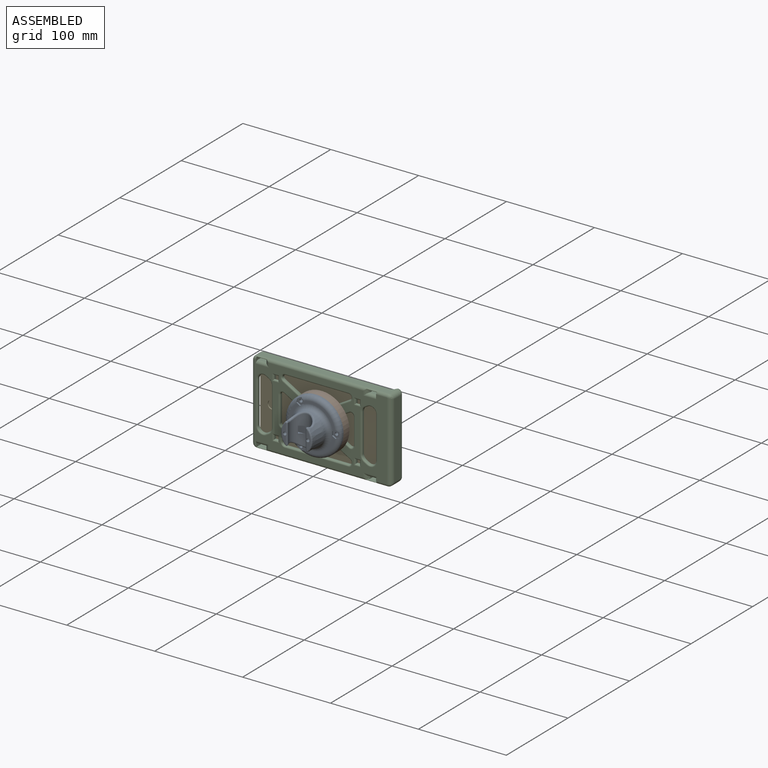
[diagram: assembled view]
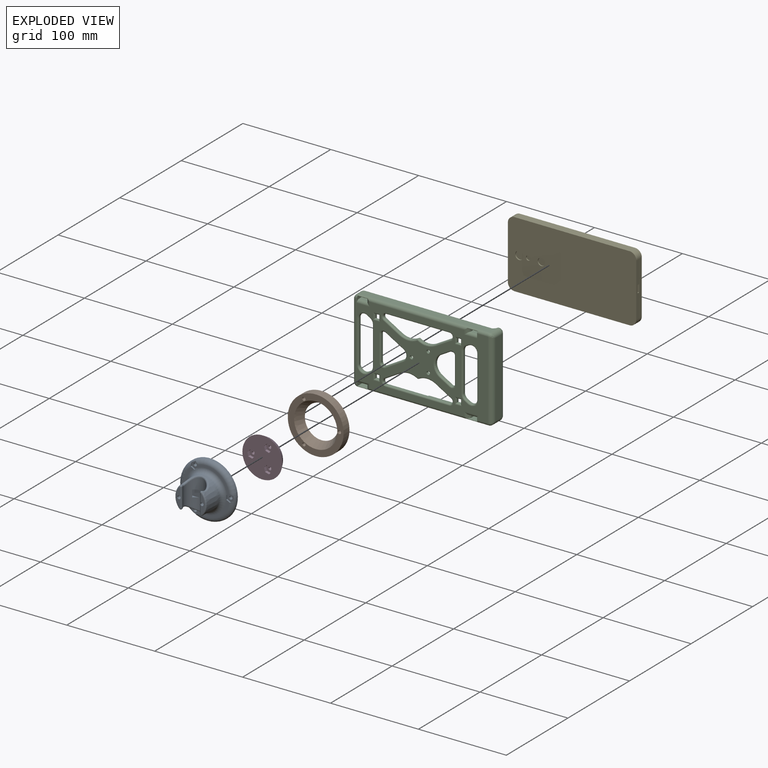
[diagram: exploded view]
GUIDED TOUR — MATED ASSEMBLY (Onshape document f2cc171b6fee4f7c1498dc96, AutoMate assembly f2cc171b6fee4f7c1498dc96_dc602207f410a8f758f2ab92_96a371d67c970a9a8f5a49b7_default)

This assembly has 5 components, labeled P0..P4 below (a component is one placed occurrence of a part; the same part can appear more than once), held together by 8 mates. A mate is a constraint between two components; its type names the relative motion it leaves free:
  CYLINDRICAL — leaves both rotation about and translation along the listed axis free,
  PLANAR — leaves sliding in the plane through the listed point (normal = the listed direction) and rotation about that normal free,
  REVOLUTE — leaves rotation about the listed axis free (a hinge).
Axis/direction vectors are unit vectors and 'through' points are millimeter coordinates, both in the assembly's world frame.

MATES
  1. PLANAR "Planar 1": P2 <-> P4, direction (0.000, 1.000, 0.000) through (-72.36, 19.48, 110.07) mm
  2. PLANAR "Planar 2": P2 <-> P4, direction (-1.000, 0.000, 0.000) through (72.48, 29.36, 110.07) mm
  3. REVOLUTE "Revolute 2": P0 <-> P1, axis (0.000, 1.000, 0.000) through (26.44, 5.19, 110.09) mm
  4. PLANAR "Planar 3": P3 <-> P2, direction (0.000, 1.000, 0.000) through (-0.55, 14.71, 110.07) mm
  5. REVOLUTE "Revolute 1": P1 <-> P3, axis (0.000, 1.000, 0.000) through (-0.55, 14.71, 110.07) mm
  6. CYLINDRICAL "Cylindrical 2": P2 <-> P3, axis (0.000, -1.000, 0.000) through (5.80, 14.71, 99.07) mm
  7. CYLINDRICAL "Cylindrical 1": P2 <-> P3, axis (0.000, -1.000, 0.000) through (5.80, 14.71, 121.07) mm
  8. REVOLUTE "Revolute 3": P1 <-> P0, axis (0.000, -1.000, 0.000) through (-14.02, 5.19, 86.69) mm

ASSEMBLY ORDER
  1. P1 — the base component [order verified]
  2. P3 [order verified]
  3. P2 [order verified]
  4. P4 [order verified]
  5. P0 [order verified]
(P3 verified with a relaxed clearance tolerance: the source model stores slight part interference there.)
Order-tag legend:
  [order verified] — this step's position reverses a verified removal order: the component was checked to insert without passing through the ones already placed.

Of the 5 components, 3 carry the full construction recipe — the FeatureScript program that regenerates the part's solid from scratch; the rest are supplied as boundary geometry only.
Each toured component is shown spotlighted twice — in the assembled view, then in the exploded view, where a leader line traces a displaced component back to its assembled socket (saturated green if recipe-attached, orange if geometry-only; every other component desaturated gray) — followed by its recipe or geometry summary and the mates that hold it.
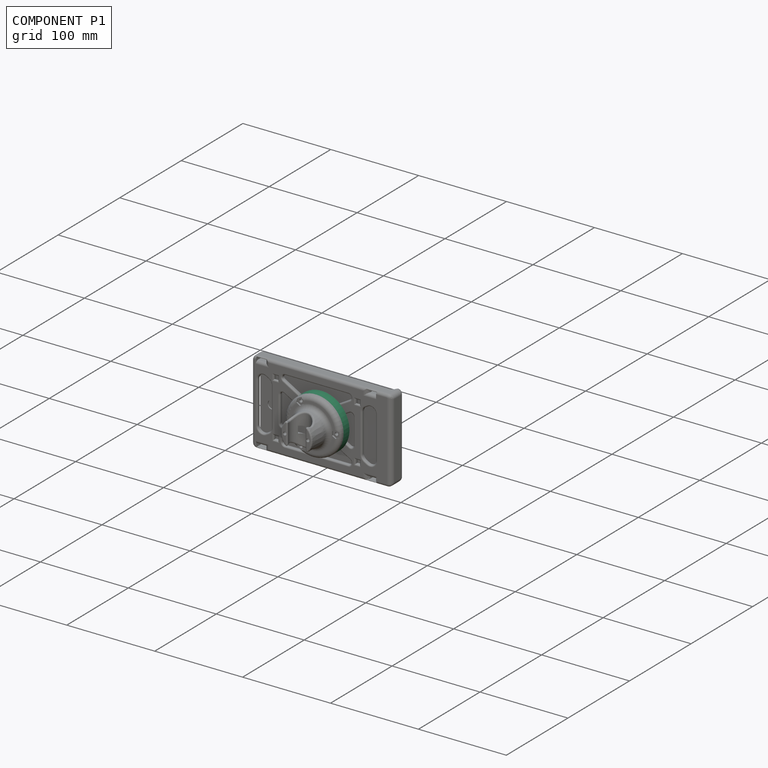
[diagram: component P1 — assembled]
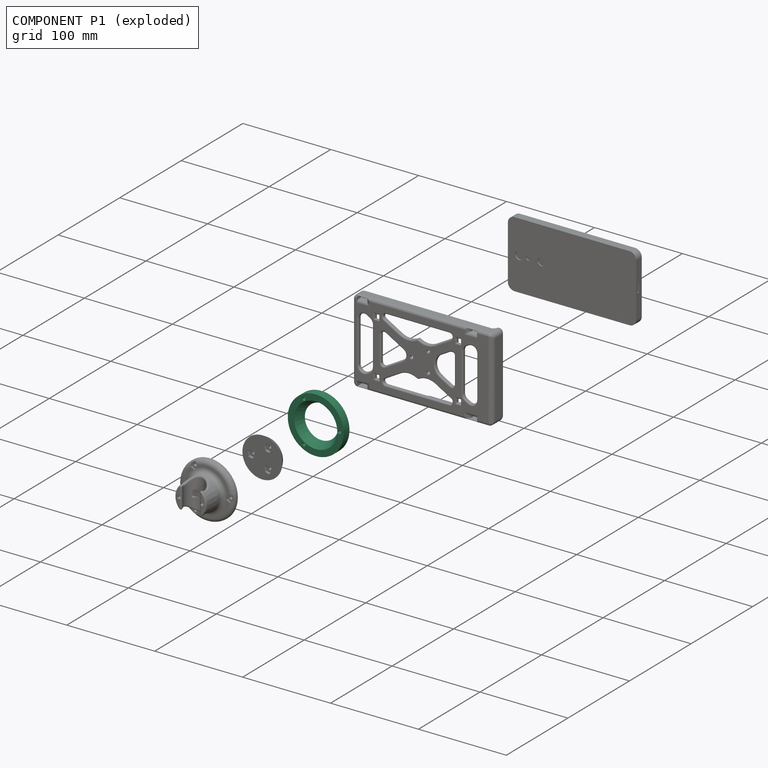
[diagram: component P1 — exploded]
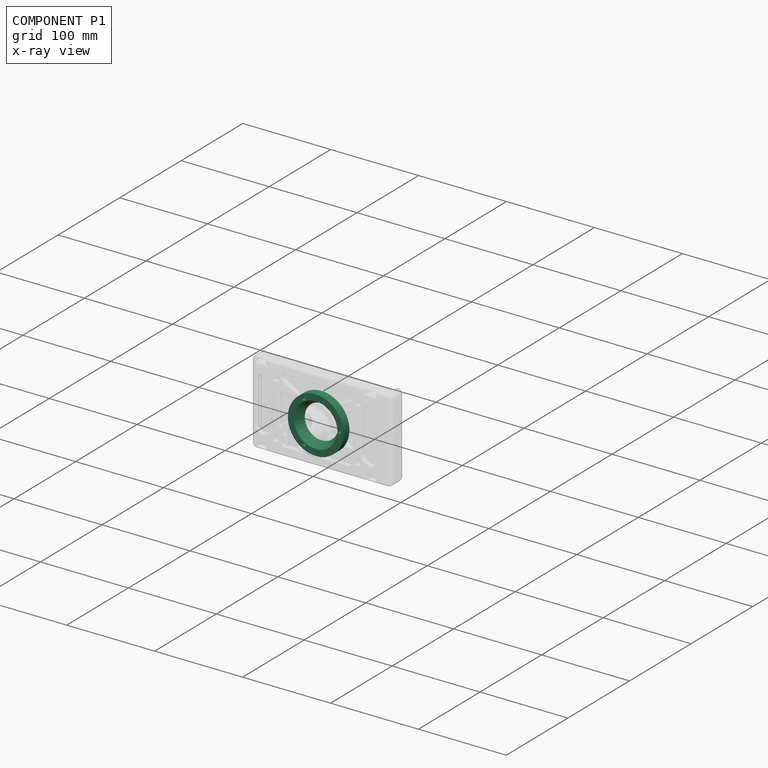
[diagram: component P1 — x-ray view]
COMPONENT P1 — recipe-attached (CADFS 00198080, mesh-verified: the recipe's output STEP matches this component's geometry to below the mesh-comparison resolution (tessellation chordal tolerance ~0.135 mm)).
Held by: REVOLUTE mate "Revolute 2" to P0; REVOLUTE mate "Revolute 1" to P3; REVOLUTE mate "Revolute 3" to P0.
Construction recipe (FeatureScript — the CAD program that rebuilds this solid; sketch coordinates are in the units given by the * unit suffixes, e.g. mm):

FeatureScript 1511;
import(path : "onshape/std/geometry.fs", version : "1511.0");
import(path : "onshape/std/common.fs", version : "1511.0");
const mm = millimeter;
const VERTEX = EntityType.VERTEX;
const EDGE = EntityType.EDGE;
const FACE = EntityType.FACE;
const BODY = EntityType.BODY;
function v(x, y){return vector(x, y);}
function OD(order){return orderDisambiguation(order);}
function OSD(set){return originalSetDisambiguation(set);}
function TD(topology){return topologyDisambiguation(topology);}
function TDD(query){return trueDependencyDisambiguation(query);}
function sQuery(a, b, c) {return sketchEntityQuery(a, b, c);}

annotation { "Feature Type Name" : "Feature", "Feature Type Description" : "" }
export const myFeature = defineFeature(function(context is Context, id is Id, definition is map)
    precondition{}
    {
        {
            var Q0;
            Q0=qCreatedBy(makeId("Top.planeOp"),FACE);
            var sketch = newSketch(context, id + "F0", { "sketchPlane" : qUnion([Q0])});
            skCircle(sketch, "E0", {"center": v(0, 0) * mm, "radius": 31.75 * mm});
            skSolve(sketch);
        }
        {
            var Q0;
            Q0 = qSketchRegion(id + "F0", true);
            extrude(context, id + "F1", {"entities" : qUnion([Q0]), "depth" : 9.52 * mm});
        }
        {
            var Q0;
            Q0=makeQuery(id+"F1.opExtrude","CAP_FACE",FACE,{"disambiguationData":[OSD([sQuery(id+"F0.wireOp",EDGE,"E0")])],"isStart":false});
            var sketch = newSketch(context, id + "F2", { "sketchPlane" : qUnion([Q0])});
            skCircle(sketch, "E1", {"center": v(0, 0) * mm, "radius": 19.05 * mm});
            skSolve(sketch);
        }
        {
            var Q0;
            Q0 = qSketchRegion(id + "F2", true);
            extrude(context, id + "F3", {"entities" : qUnion([Q0]), "operationType" : NewBodyOperationType.REMOVE, "oppositeDirection" : true, "depth" : 25.4 * mm, "hasDraft" : true, "draftAngle" : 30 * degree});
        }
        {
            var Q0;
            Q0=makeQuery(id+"F1.opExtrude","CAP_FACE",FACE,{"disambiguationData":[OSD([sQuery(id+"F0.wireOp",EDGE,"E0")])],"isStart":false});
            var sketch = newSketch(context, id + "F4", { "sketchPlane" : qUnion([Q0])});
            skCircle(sketch, "E2.0", {"center": v(0, 0) * mm, "radius": 26.99 * mm, "construction": true});
            skPoint(sketch, "E3", {"position": v(0, -26.99) * mm});
            skPoint(sketch, "E4.1.0", {"position": v(23.37, 13.5) * mm});
            skPoint(sketch, "E4.2.0", {"position": v(-23.37, 13.5) * mm});
            skSolve(sketch);
        }
        {
            var Q0;
            Q0=sQuery(id+"F4.wireOp",VERTEX,"E4.2.0");
            var Q1;
            Q1=sQuery(id+"F4.wireOp",VERTEX,"E4.1.0");
            var Q2;
            Q2=sQuery(id+"F4.wireOp",VERTEX,"E3");
            var Q3;
            Q3=makeQuery(id+"F1.opExtrude","SWEPT_BODY",BODY,{"disambiguationData":[OSD([sQuery(id+"F0.wireOp",EDGE,"E0")])]});
            hole(context, id + "F5", {"style" : HoleStyle.C_SINK, "endStyle" : HoleEndStyle.THROUGH, "standardTappedOrClearance" : lookupTablePath({ "standard" : "ANSI", "fit" : "Normal (ASME)", "size" : "#6", "type" : "Clearance" }), "standardBlindInLast" : lookupTablePath({ "fit" : "Free", "standard" : "ANSI", "size" : "#6", "type" : "Clearance" }), "holeDiameter" : 3.8 * mm, "cSinkDiameter" : 7.8 * mm, "cSinkAngle" : 82 * degree, "startFromSketch" : true, "locations" : qUnion([Q0, Q1, Q2]), "scope" : qUnion([Q3]), "isTappedThrough" : true});
        }
    });
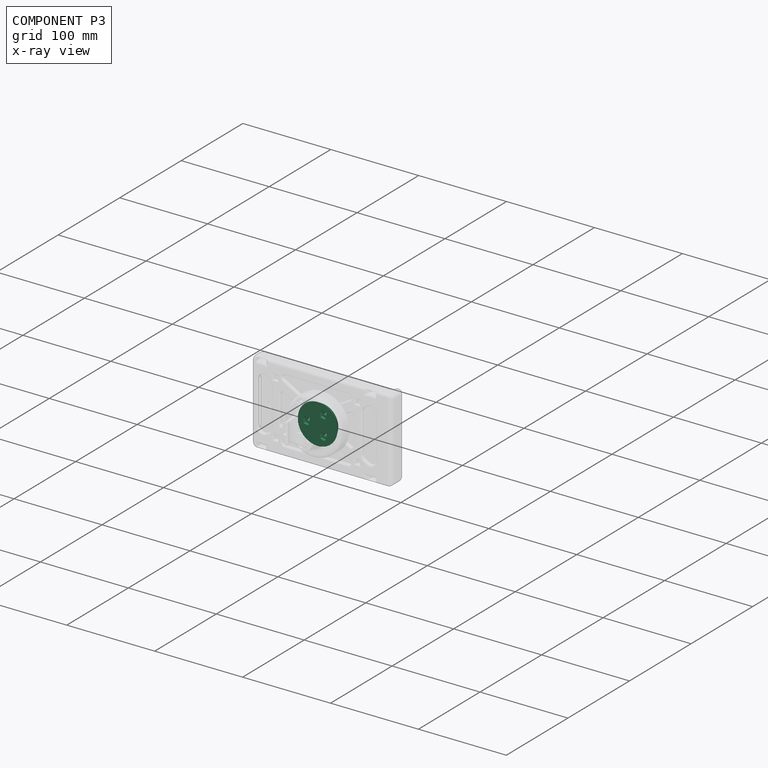
[diagram: component P3 — x-ray view]
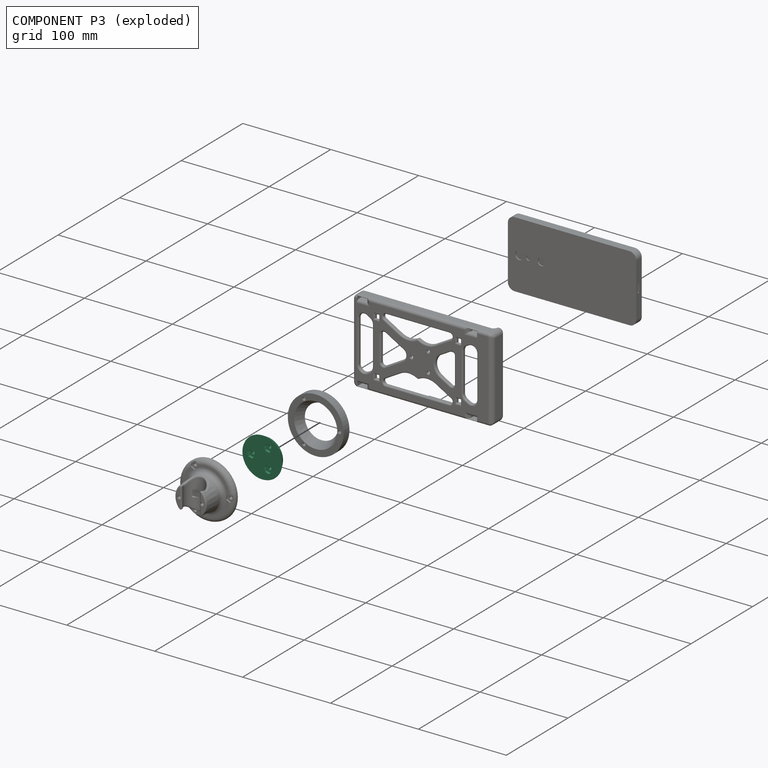
[diagram: component P3 — exploded]
COMPONENT P3 — recipe-attached (CADFS 00197660, mesh-verified: the recipe's output STEP matches this component's geometry to below the mesh-comparison resolution (tessellation chordal tolerance ~0.0968 mm)).
Held by: PLANAR mate "Planar 3" to P2; REVOLUTE mate "Revolute 1" to P1; CYLINDRICAL mate "Cylindrical 2" to P2; CYLINDRICAL mate "Cylindrical 1" to P2.
Construction recipe (FeatureScript — the CAD program that rebuilds this solid; sketch coordinates are in the units given by the * unit suffixes, e.g. mm):

FeatureScript 1511;
import(path : "onshape/std/geometry.fs", version : "1511.0");
import(path : "onshape/std/common.fs", version : "1511.0");
const mm = millimeter;
const VERTEX = EntityType.VERTEX;
const EDGE = EntityType.EDGE;
const FACE = EntityType.FACE;
const BODY = EntityType.BODY;
function v(x, y){return vector(x, y);}
function OD(order){return orderDisambiguation(order);}
function OSD(set){return originalSetDisambiguation(set);}
function TD(topology){return topologyDisambiguation(topology);}
function TDD(query){return trueDependencyDisambiguation(query);}
function sQuery(a, b, c) {return sketchEntityQuery(a, b, c);}

annotation { "Feature Type Name" : "Feature", "Feature Type Description" : "" }
export const myFeature = defineFeature(function(context is Context, id is Id, definition is map)
    precondition{}
    {
        {
            var Q0;
            Q0=qCreatedBy(makeId("Top.planeOp"),FACE);
            var sketch = newSketch(context, id + "F0", { "sketchPlane" : qUnion([Q0])});
            skCircle(sketch, "E0", {"center": v(0, 0) * mm, "radius": 19.05 * mm});
            skSolve(sketch);
        }
        {
            var Q0;
            Q0 = qSketchRegion(id + "F0", true);
            extrude(context, id + "F1", {"entities" : qUnion([Q0]), "oppositeDirection" : true, "depth" : 6.35 * mm, "hasDraft" : true, "draftAngle" : 30 * degree});
        }
        {
            var Q0;
            Q0=makeQuery(id+"F1.opExtrude","CAP_FACE",FACE,{"disambiguationData":[OSD([sQuery(id+"F0.wireOp",EDGE,"E0")])],"isStart":true});
            var sketch = newSketch(context, id + "F2", { "sketchPlane" : qUnion([Q0])});
            skCircle(sketch, "E1", {"center": v(0, 0) * mm, "radius": 12.7 * mm, "construction": true});
            skCircle(sketch, "E2", {"center": v(0, 12.7) * mm, "radius": 1.65 * mm});
            skCircle(sketch, "E3.1.0", {"center": v(-11, -6.35) * mm, "radius": 1.65 * mm});
            skCircle(sketch, "E3.2.0", {"center": v(11, -6.35) * mm, "radius": 1.65 * mm});
            skSolve(sketch);
        }
        {
            var Q0;
            Q0 = qSketchRegion(id + "F2", true);
            extrude(context, id + "F3", {"entities" : qUnion([Q0]), "operationType" : NewBodyOperationType.REMOVE, "oppositeDirection" : true, "depth" : 25.4 * mm});
        }
        {
            var Q0;
            Q0=makeQuery(id+"F1.opExtrude","CAP_FACE",FACE,{"disambiguationData":[OSD([sQuery(id+"F0.wireOp",EDGE,"E0")])],"isStart":false});
            var sketch = newSketch(context, id + "F4", { "sketchPlane" : qUnion([Q0])});
            skCircle(sketch, "E4.cCircle", {"center": v(0, -12.7) * mm, "radius": 3.94 * mm, "construction": true});
            skLineSegment(sketch, "E4.0", {"start": v(1.28, -8.34) * mm, "end": v(4.42, -11.62) * mm});
            skLineSegment(sketch, "E4.1", {"start": v(4.42, -11.62) * mm, "end": v(3.14, -15.99) * mm});
            skLineSegment(sketch, "E4.2", {"start": v(3.14, -15.99) * mm, "end": v(-1.28, -17.06) * mm});
            skLineSegment(sketch, "E4.3", {"start": v(-1.28, -17.06) * mm, "end": v(-4.42, -13.78) * mm});
            skLineSegment(sketch, "E4.4", {"start": v(-4.42, -13.78) * mm, "end": v(-3.14, -9.41) * mm});
            skLineSegment(sketch, "E4.5", {"start": v(-3.14, -9.41) * mm, "end": v(1.28, -8.34) * mm});
            skPoint(sketch, "E4.0.midPoint", {"position": v(2.85, -9.98) * mm});
            skCircle(sketch, "E5.1.0", {"center": v(11, 6.35) * mm, "radius": 3.94 * mm, "construction": true});
            skLineSegment(sketch, "E5.1.1", {"start": v(14.14, 3.06) * mm, "end": v(9.72, 1.99) * mm});
            skLineSegment(sketch, "E5.1.2", {"start": v(9.72, 1.99) * mm, "end": v(6.58, 5.27) * mm});
            skLineSegment(sketch, "E5.1.3", {"start": v(6.58, 5.27) * mm, "end": v(7.86, 9.64) * mm});
            skLineSegment(sketch, "E5.1.4", {"start": v(7.86, 9.64) * mm, "end": v(12.28, 10.71) * mm});
            skLineSegment(sketch, "E5.1.5", {"start": v(12.28, 10.71) * mm, "end": v(15.42, 7.43) * mm});
            skLineSegment(sketch, "E5.1.6", {"start": v(15.42, 7.43) * mm, "end": v(14.14, 3.06) * mm});
            skCircle(sketch, "E5.2.0", {"center": v(-11, 6.35) * mm, "radius": 3.94 * mm, "construction": true});
            skLineSegment(sketch, "E5.2.1", {"start": v(-9.72, 10.71) * mm, "end": v(-6.58, 7.43) * mm});
            skLineSegment(sketch, "E5.2.2", {"start": v(-6.58, 7.43) * mm, "end": v(-7.86, 3.06) * mm});
            skLineSegment(sketch, "E5.2.3", {"start": v(-7.86, 3.06) * mm, "end": v(-12.28, 1.99) * mm});
            skLineSegment(sketch, "E5.2.4", {"start": v(-12.28, 1.99) * mm, "end": v(-15.42, 5.27) * mm});
            skLineSegment(sketch, "E5.2.5", {"start": v(-15.42, 5.27) * mm, "end": v(-14.14, 9.64) * mm});
            skLineSegment(sketch, "E5.2.6", {"start": v(-14.14, 9.64) * mm, "end": v(-9.72, 10.71) * mm});
            skPoint(sketch, "E5.center", {"position": v(0, 0) * mm});
            skSolve(sketch);
        }
        {
            var Q0;
            Q0 = qSketchRegion(id + "F4", true);
            extrude(context, id + "F5", {"entities" : qUnion([Q0]), "operationType" : NewBodyOperationType.REMOVE, "oppositeDirection" : true, "depth" : 3.17 * mm});
        }
    });
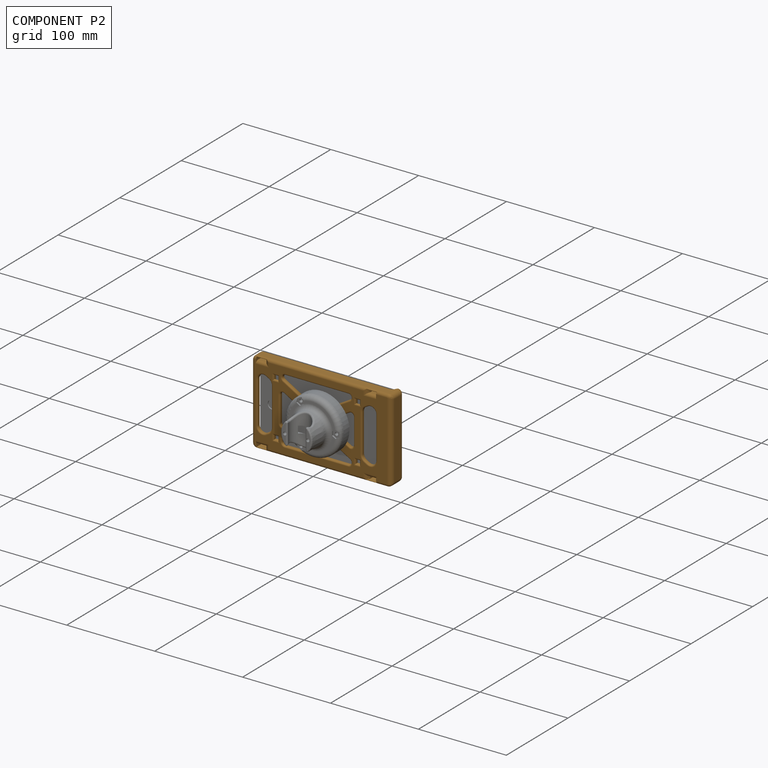
[diagram: component P2 — assembled]
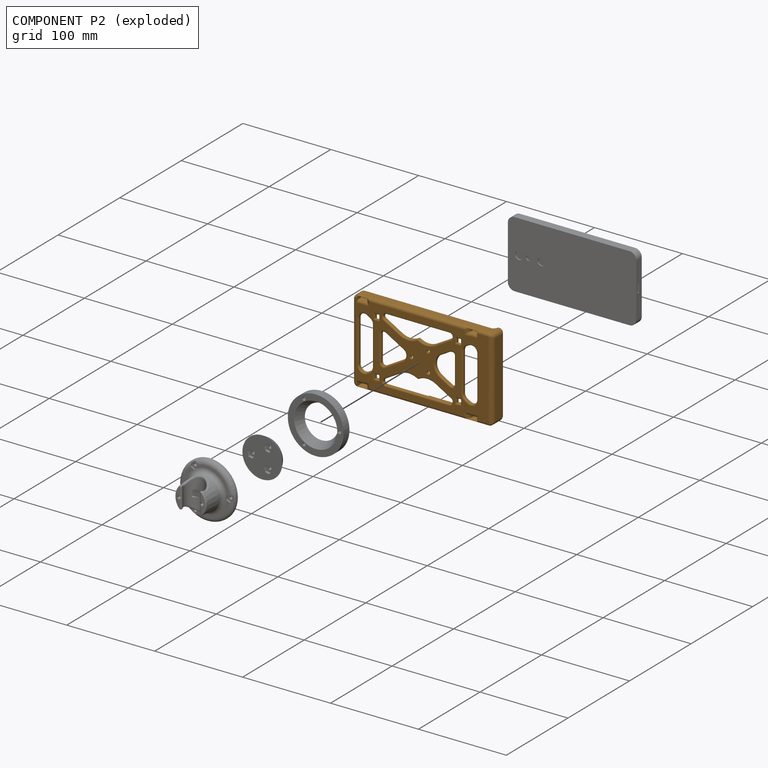
[diagram: component P2 — exploded]
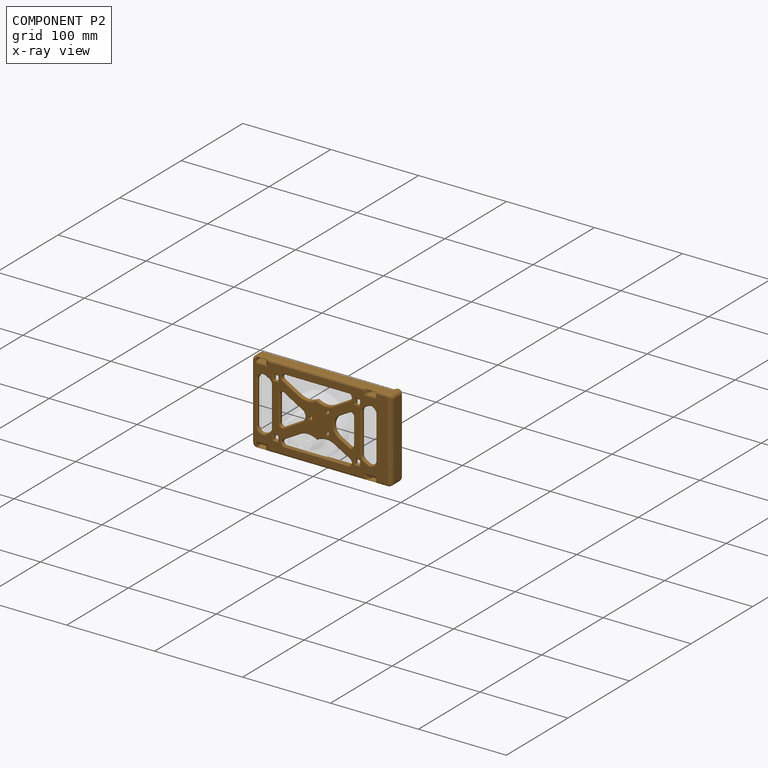
[diagram: component P2 — x-ray view]
COMPONENT P2 — geometry summary (no construction recipe available for this part):
  bounding box: 159.0 x 107.7 x 21.5 mm
  B-rep topology: 1 solid, 380 faces, 1930 edges
  volume: 69283 mm^3 (19% of its bounding box)
Held by: PLANAR mate "Planar 1" to P4; PLANAR mate "Planar 2" to P4; PLANAR mate "Planar 3" to P3; CYLINDRICAL mate "Cylindrical 2" to P3; CYLINDRICAL mate "Cylindrical 1" to P3.
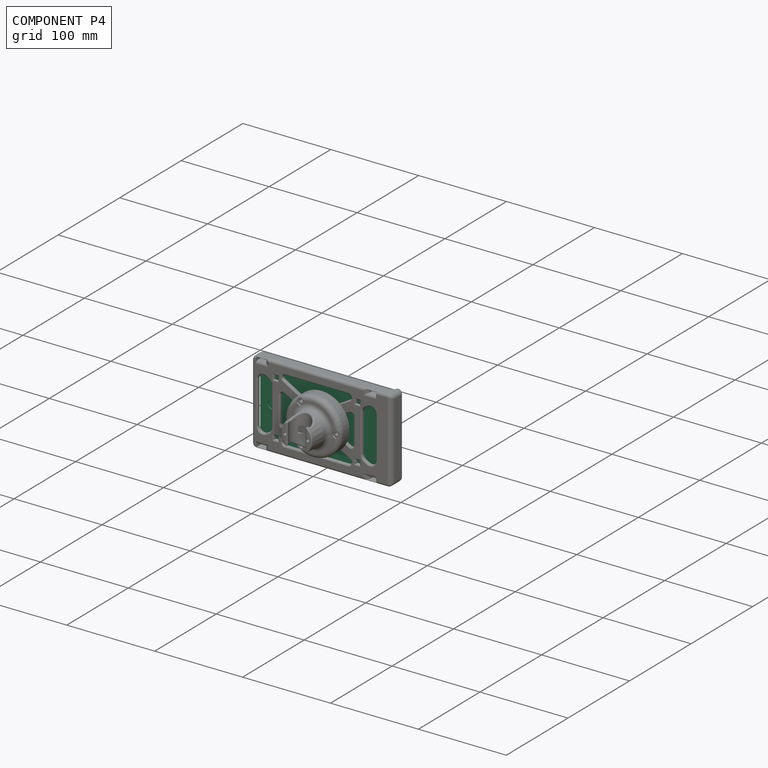
[diagram: component P4 — assembled]
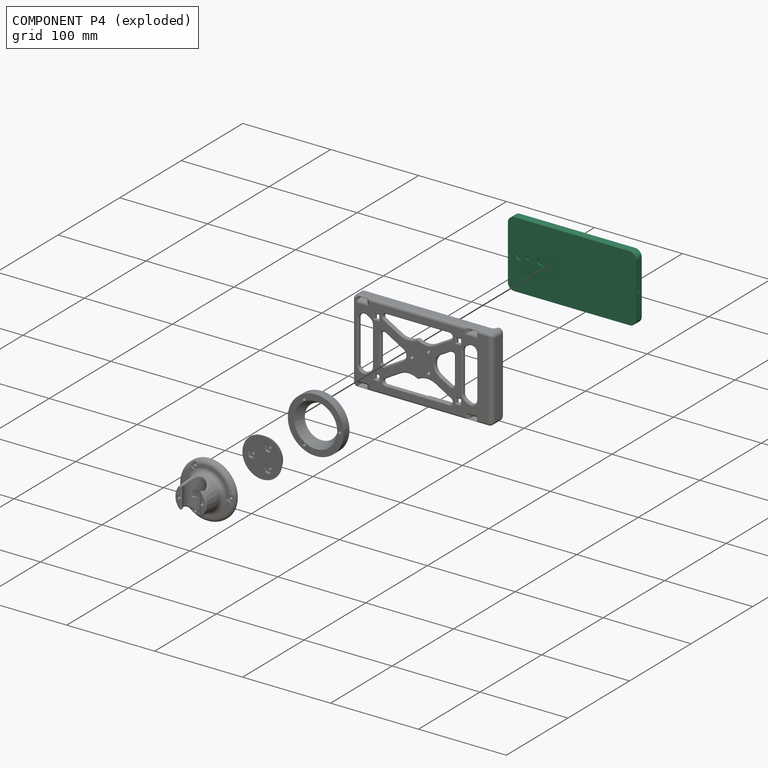
[diagram: component P4 — exploded]
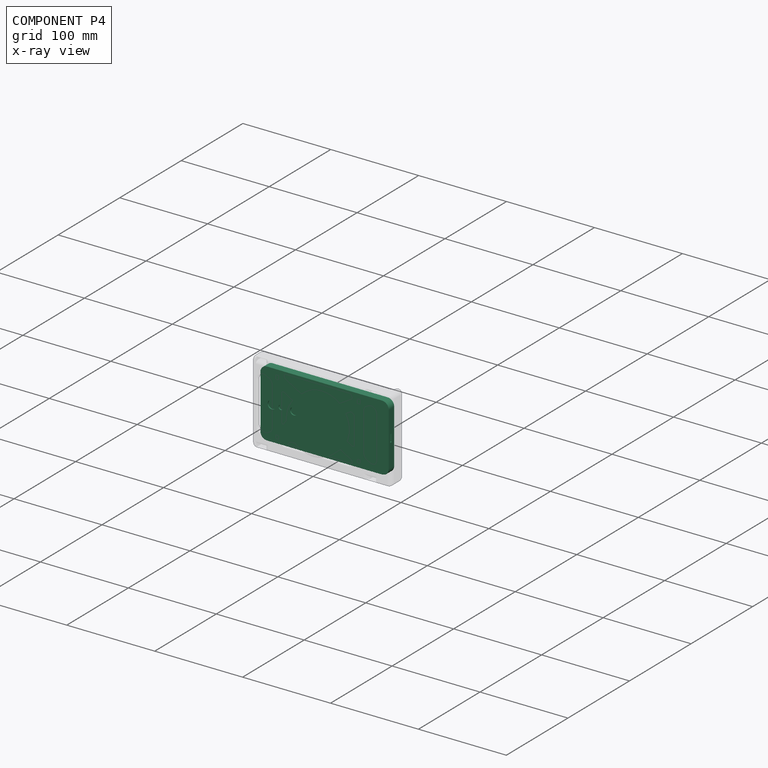
[diagram: component P4 — x-ray view]
COMPONENT P4 — recipe-attached (CADFS 00196379, mesh-verified: the recipe's output STEP matches this component's geometry to below the mesh-comparison resolution (tessellation chordal tolerance ~0.247 mm)).
Held by: PLANAR mate "Planar 1" to P2; PLANAR mate "Planar 2" to P2.
Construction recipe (FeatureScript — the CAD program that rebuilds this solid; sketch coordinates are in the units given by the * unit suffixes, e.g. mm):

FeatureScript 1511;
import(path : "onshape/std/geometry.fs", version : "1511.0");
import(path : "onshape/std/common.fs", version : "1511.0");
const mm = millimeter;
const VERTEX = EntityType.VERTEX;
const EDGE = EntityType.EDGE;
const FACE = EntityType.FACE;
const BODY = EntityType.BODY;
function v(x, y){return vector(x, y);}
function OD(order){return orderDisambiguation(order);}
function OSD(set){return originalSetDisambiguation(set);}
function TD(topology){return topologyDisambiguation(topology);}
function TDD(query){return trueDependencyDisambiguation(query);}
function sQuery(a, b, c) {return sketchEntityQuery(a, b, c);}

annotation { "Feature Type Name" : "Feature", "Feature Type Description" : "" }
export const myFeature = defineFeature(function(context is Context, id is Id, definition is map)
    precondition{}
    {
        {
            var Q0;
            Q0=qCreatedBy(makeId("Top.planeOp"),FACE);
            var sketch = newSketch(context, id + "F0", { "sketchPlane" : qUnion([Q0])});
            skLineSegment(sketch, "E0.bottom", {"start": v(-70.09, 38.22) * mm, "end": v(75.96, 38.22) * mm});
            skLineSegment(sketch, "E0.top", {"start": v(-70.09, -37.98) * mm, "end": v(75.96, -37.98) * mm});
            skLineSegment(sketch, "E0.left", {"start": v(-70.09, 38.22) * mm, "end": v(-70.09, -37.98) * mm});
            skLineSegment(sketch, "E0.right", {"start": v(75.96, 38.22) * mm, "end": v(75.96, -37.98) * mm});
            skSolve(sketch);
        }
        {
            var Q0;
            Q0=qSketchRegion(id+"F0",true);
            extrude(context, id + "F1", {"entities" : qUnion([Q0]), "depth" : 9.03 * mm});
        }
        {
            var Q0;
            Q0=makeQuery(id+"F1.opExtrude","SWEPT_EDGE",EDGE,{"disambiguationData":[OSD([sQuery(id+"F0.wireOp",EDGE,"E0.top"),sQuery(id+"F0.wireOp",EDGE,"E0.right")])]});
            var Q1;
            Q1=makeQuery(id+"F1.opExtrude","SWEPT_EDGE",EDGE,{"disambiguationData":[OSD([sQuery(id+"F0.wireOp",EDGE,"E0.top"),sQuery(id+"F0.wireOp",EDGE,"E0.left")])]});
            var Q2;
            Q2=makeQuery(id+"F1.opExtrude","SWEPT_EDGE",EDGE,{"disambiguationData":[OSD([sQuery(id+"F0.wireOp",EDGE,"E0.bottom"),sQuery(id+"F0.wireOp",EDGE,"E0.left")])]});
            var Q3;
            Q3=makeQuery(id+"F1.opExtrude","SWEPT_EDGE",EDGE,{"disambiguationData":[OSD([sQuery(id+"F0.wireOp",EDGE,"E0.bottom"),sQuery(id+"F0.wireOp",EDGE,"E0.right")])]});
            fillet(context, id + "F2", {"entities" : qUnion([Q0, Q1, Q2, Q3]), "radius" : 7.62 * mm, "tangentPropagation" : true, "allowEdgeOverflow" : false});
        }
        {
            var Q0;
            Q0=makeQuery(id+"F1.opExtrude","SWEPT_FACE",FACE,{"disambiguationData":[OSD([sQuery(id+"F0.wireOp",EDGE,"E0.right")])]});
            var sketch = newSketch(context, id + "F3", { "sketchPlane" : qUnion([Q0])});
            skPoint(sketch, "E1.endSnap0", {"position": v(-30.36, 4.52) * mm});
            skLineSegment(sketch, "E2", {"start": v(-4.27, 2.5) * mm, "end": v(4.27, 2.5) * mm});
            skLineSegment(sketch, "E3", {"start": v(-4.27, 2.5) * mm, "end": v(-4.27, 4.81) * mm});
            skLineSegment(sketch, "E4", {"start": v(4.27, 2.5) * mm, "end": v(4.27, 4.81) * mm});
            skPoint(sketch, "E5.centerSnap0", {"position": v(0, 2.5) * mm});
            skLineSegment(sketch, "E6", {"start": v(-4.27, 4.81) * mm, "end": v(4.27, 4.81) * mm});
            skSolve(sketch);
        }
        {
            var Q0;
            Q0=qSketchRegion(id+"F3",true);
            extrude(context, id + "F4", {"entities" : qUnion([Q0]), "operationType" : NewBodyOperationType.REMOVE, "oppositeDirection" : true, "depth" : 25.4 * mm});
        }
        {
            var Q0;
            Q0=makeQuery(id+"F1.opExtrude","SWEPT_FACE",FACE,{"disambiguationData":[OSD([sQuery(id+"F0.wireOp",EDGE,"E0.left")])]});
            var sketch = newSketch(context, id + "F5", { "sketchPlane" : qUnion([Q0])});
            skCircle(sketch, "E7", {"center": v(-21.84, 4.52) * mm, "radius": 2.07 * mm});
            skPoint(sketch, "E7.centerSnap0", {"position": v(-30.6, 4.52) * mm});
            skSolve(sketch);
        }
        {
            var Q0;
            Q0=qSketchRegion(id+"F5",true);
            extrude(context, id + "F6", {"entities" : qUnion([Q0]), "operationType" : NewBodyOperationType.REMOVE, "oppositeDirection" : true, "depth" : 2.54 * mm});
        }
        {
            var Q0;
            Q0=qSketchRegion(id+"F5",true);
            extrude(context, id + "F7", {"entities" : qUnion([Q0]), "operationType" : NewBodyOperationType.REMOVE, "oppositeDirection" : true, "depth" : 38.1 * mm});
        }
        {
            var Q0;
            Q0=makeQuery(id+"F1.opExtrude","CAP_FACE",FACE,{"disambiguationData":[OSD([sQuery(id+"F0.wireOp",EDGE,"E0.bottom"),sQuery(id+"F0.wireOp",EDGE,"E0.top"),sQuery(id+"F0.wireOp",EDGE,"E0.left"),sQuery(id+"F0.wireOp",EDGE,"E0.right")])],"isStart":false});
            var sketch = newSketch(context, id + "F8", { "sketchPlane" : qUnion([Q0])});
            skLineSegment(sketch, "E8.bottom", {"start": v(-59.77, 35.04) * mm, "end": v(54.53, 35.04) * mm});
            skLineSegment(sketch, "E8.top", {"start": v(-59.77, -35.6) * mm, "end": v(54.53, -35.6) * mm});
            skLineSegment(sketch, "E8.left", {"start": v(-59.77, 35.04) * mm, "end": v(-59.77, -35.6) * mm});
            skLineSegment(sketch, "E8.right", {"start": v(54.53, 35.04) * mm, "end": v(54.53, -35.6) * mm});
            skSolve(sketch);
        }
        {
            var Q0;
            Q0=qSketchRegion(id+"F8",true);
            extrude(context, id + "F9", {"entities" : qUnion([Q0]), "operationType" : NewBodyOperationType.REMOVE, "oppositeDirection" : true, "depth" : 1.27 * mm});
        }
        {
            var Q0;
            Q0=makeQuery(id+"F1.opExtrude","CAP_FACE",FACE,{"disambiguationData":[OSD([sQuery(id+"F0.wireOp",EDGE,"E0.bottom"),sQuery(id+"F0.wireOp",EDGE,"E0.top"),sQuery(id+"F0.wireOp",EDGE,"E0.left"),sQuery(id+"F0.wireOp",EDGE,"E0.right")])],"isStart":false});
            var sketch = newSketch(context, id + "F10", { "sketchPlane" : qUnion([Q0])});
            skCircle(sketch, "E9", {"center": v(-64.55, 26.4) * mm, "radius": 2.21 * mm});
            skCircle(sketch, "E10", {"center": v(-64.78, 20.28) * mm, "radius": 1.5 * mm});
            skCircle(sketch, "E11", {"center": v(71.8, 26.1) * mm, "radius": 1.57 * mm});
            skCircle(sketch, "E12", {"center": v(71.8, -25.83) * mm, "radius": 1.61 * mm});
            skCircle(sketch, "E13", {"center": v(-64.42, -29.95) * mm, "radius": 2.61 * mm});
            skCircle(sketch, "E14", {"center": v(-64.78, -24.52) * mm, "radius": 1.48 * mm});
            skLineSegment(sketch, "E15", {"start": v(-65.67, 16.05) * mm, "end": v(-63.61, 16.05) * mm});
            skLineSegment(sketch, "E16", {"start": v(-63.61, 16.05) * mm, "end": v(-63.61, -19.34) * mm});
            skLineSegment(sketch, "E17", {"start": v(-63.61, -19.34) * mm, "end": v(-65.71, -19.34) * mm});
            skLineSegment(sketch, "E18", {"start": v(-65.71, -19.34) * mm, "end": v(-65.67, 16.05) * mm});
            skLineSegment(sketch, "E19", {"start": v(71.8, 22.68) * mm, "end": v(73.85, 22.68) * mm});
            skLineSegment(sketch, "E20", {"start": v(73.85, 22.68) * mm, "end": v(73.85, 12.95) * mm});
            skLineSegment(sketch, "E21", {"start": v(73.85, 12.95) * mm, "end": v(71.8, 12.95) * mm});
            skLineSegment(sketch, "E22", {"start": v(71.8, 12.95) * mm, "end": v(71.8, 22.68) * mm});
            skLineSegment(sketch, "E23", {"start": v(71.8, -22.01) * mm, "end": v(73.72, -22.01) * mm});
            skLineSegment(sketch, "E24", {"start": v(73.72, -22.01) * mm, "end": v(73.72, -11.85) * mm});
            skLineSegment(sketch, "E25", {"start": v(73.72, -11.85) * mm, "end": v(71.8, -11.85) * mm});
            skLineSegment(sketch, "E26", {"start": v(71.8, -11.85) * mm, "end": v(71.8, -22.01) * mm});
            skSolve(sketch);
        }
        {
            var Q0;
            Q0=qSketchRegion(id+"F10",true);
            extrude(context, id + "F11", {"entities" : qUnion([Q0]), "operationType" : NewBodyOperationType.REMOVE, "oppositeDirection" : true, "depth" : 1.27 * mm});
        }
        {
            var Q0;
            Q0=makeQuery(id+"F1.opExtrude","CAP_FACE",FACE,{"disambiguationData":[OSD([sQuery(id+"F0.wireOp",EDGE,"E0.bottom"),sQuery(id+"F0.wireOp",EDGE,"E0.top"),sQuery(id+"F0.wireOp",EDGE,"E0.left"),sQuery(id+"F0.wireOp",EDGE,"E0.right")])],"isStart":true});
            var sketch = newSketch(context, id + "F12", { "sketchPlane" : qUnion([Q0])});
            skCircle(sketch, "E27", {"center": v(-57.05, 0) * mm, "radius": 4.64 * mm});
            skCircle(sketch, "E28", {"center": v(-46.85, 0) * mm, "radius": 2.54 * mm});
            skCircle(sketch, "E29", {"center": v(-32, 0) * mm, "radius": 4.13 * mm});
            skSolve(sketch);
        }
        {
            var Q0;
            Q0=qSketchRegion(id+"F12",true);
            extrude(context, id + "F13", {"entities" : qUnion([Q0]), "operationType" : NewBodyOperationType.REMOVE, "oppositeDirection" : true, "depth" : 1.27 * mm});
        }
    });
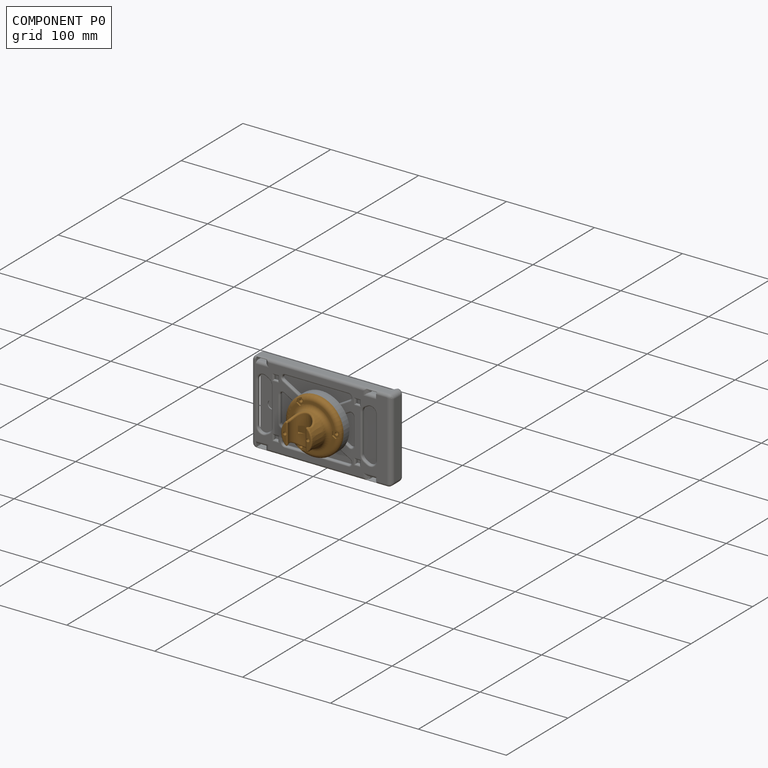
[diagram: component P0 — assembled]
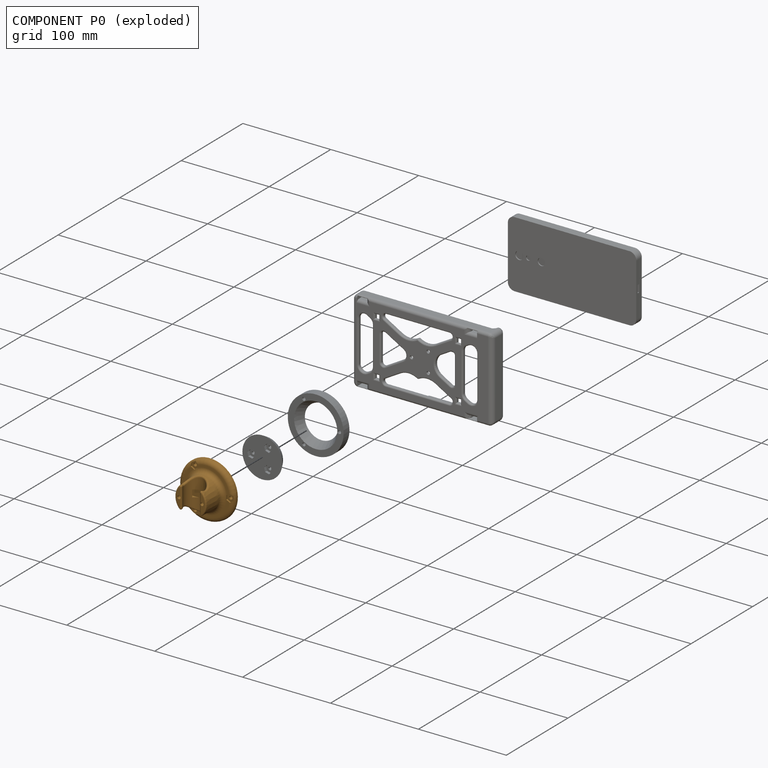
[diagram: component P0 — exploded]
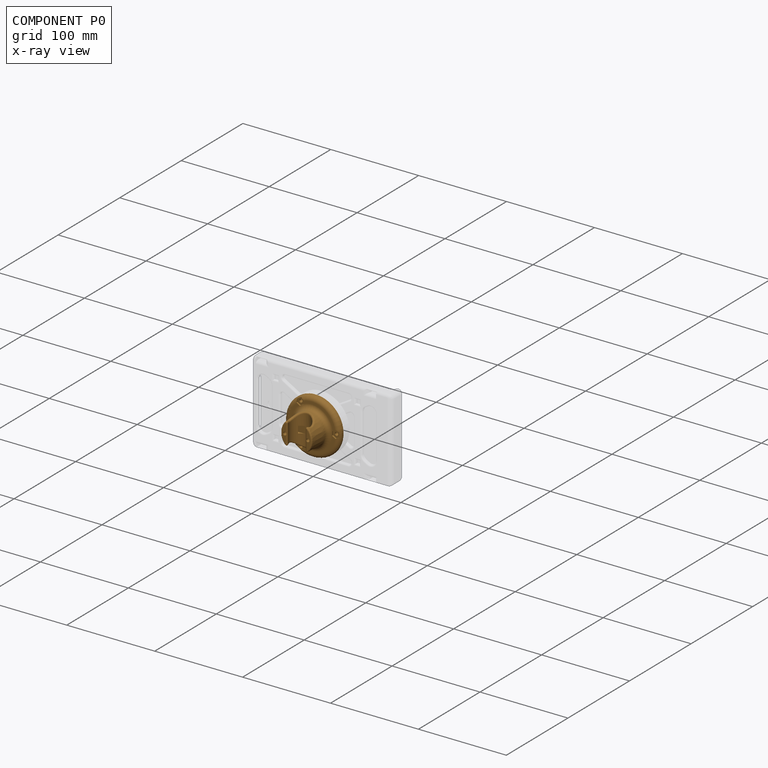
[diagram: component P0 — x-ray view]
COMPONENT P0 — geometry summary (no construction recipe available for this part):
  bounding box: 69.0 x 69.0 x 34.4 mm
  B-rep topology: 1 solid, 58 faces, 314 edges
  volume: 33633 mm^3 (21% of its bounding box)
  symmetry: mirror-symmetric across its x mid-plane
Held by: REVOLUTE mate "Revolute 2" to P1; REVOLUTE mate "Revolute 3" to P1.
PROVENANCE & LICENSES
Assembly (occurrences, transforms, mates, per-part STEP geometry): AutoMate dataset, Zenodo record 7776208, CC0.
Construction recipes: CADFS (HuggingFace VladPyatov/CADFS, CC-BY-4.0, layered over the ABC dataset), FeatureScript reconstruction programs keyed by ABC model id.
Join: ABC meta listings map ABC model id -> Onshape documentId; within a shared document, parts are matched by geometric signature (bounding-box dims + volume at 0.1% relative tolerance, exact B-rep face/solid counts).
Verification: 3 of this assembly's 5 components carry a recipe attachment, and every attachment is mesh-verified: the CADFS STEP and the AutoMate member STEP were compared as meshes in their shared local frame (symmetric sampled-point-to-mesh distance); worst across the 3 attachments: below the mesh-comparison resolution (tessellation chordal tolerance ~0.247 mm) on a 165 mm part.
Renders: orthographic iso camera (az 35 / el 25); the floor grid conveys scale (grid pitch printed in each image; no ruler). In the exploded view each component is displaced by its stored offset vector: the offsets alone carry the explosion direction (mate normal/axis signs are not orientation cues and do not encode it), and separation distances are assigned per mate-chain, not proportionally to assembly-order depth.
